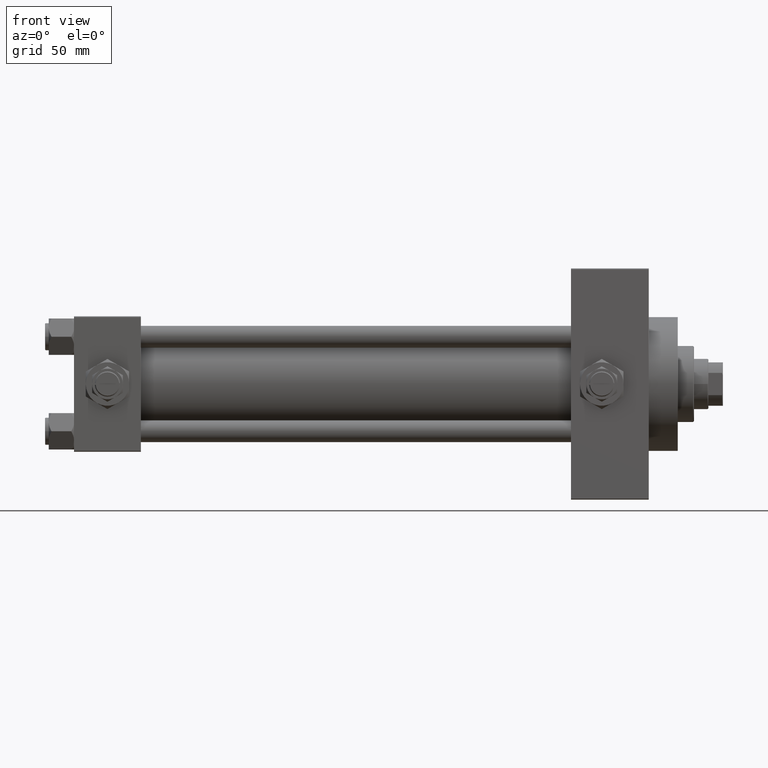
[diagram: clean part render]
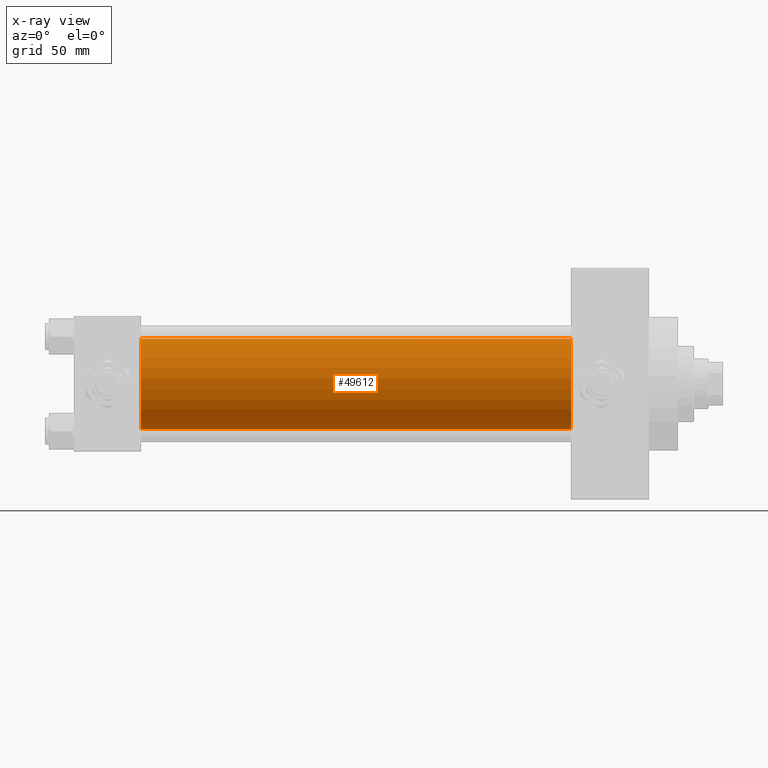
[diagram: x-ray — body ghosted, one internal face saturated and labeled with its STEP entity id]
A machine part, front view, then the same camera in x-ray: the body is ghosted and one INTERNAL B-rep face — a face not visible from any outside direction — is saturated and labeled: STEP entity #49612.
In plain terms, the highlighted cylindrical surface (partial cylindrical patch) has radius 25 mm, axis along (-1, -0, -0).
Its self-contained STEP definition (entity closure, byte-faithful):
#811 = CARTESIAN_POINT ( 'NONE',  ( 274.9999999999999432, -2.602085213965210642E-15, 0.000000000000000000 ) ) ;
#6997 = CARTESIAN_POINT ( 'NONE',  ( 274.9999999999999432, 4.595317839031724996E-16, -25.00000000000000000 ) ) ;
#8372 = EDGE_CURVE ( 'NONE', #12803, #37407, #12037, .T. ) ;
#10308 = VERTEX_POINT ( 'NONE', #44380 ) ;
#11776 = CARTESIAN_POINT ( 'NONE',  ( 274.9999999999999432, -2.602085213965210642E-15, 25.00000000000000000 ) ) ;
#12037 = LINE ( 'NONE', #23562, #37667 ) ;
#12608 = CIRCLE ( 'NONE', #24916, 25.00000000000000000 ) ;
#12803 = VERTEX_POINT ( 'NONE', #11776 ) ;
#14966 = CARTESIAN_POINT ( 'NONE',  ( 37.00000000000000000, -2.602085213965210642E-15, 25.00000000000000000 ) ) ;
#16865 = LINE ( 'NONE', #21458, #42857 ) ;
#17119 = DIRECTION ( 'NONE',  ( -1.000000000000000000, -0.000000000000000000, -0.000000000000000000 ) ) ;
#20009 = FACE_OUTER_BOUND ( 'NONE', #46710, .T. ) ;
#20031 = ORIENTED_EDGE ( 'NONE', *, *, #47681, .T. ) ;
#20768 = DIRECTION ( 'NONE',  ( -1.000000000000000000, -0.000000000000000000, -0.000000000000000000 ) ) ;
#21458 = CARTESIAN_POINT ( 'NONE',  ( 274.9999999999999432, 4.595317839031724996E-16, -25.00000000000000000 ) ) ;
#22329 = AXIS2_PLACEMENT_3D ( 'NONE', #811, #20768, #32057 ) ;
#23562 = CARTESIAN_POINT ( 'NONE',  ( 274.9999999999999432, -2.602085213965210642E-15, 25.00000000000000000 ) ) ;
#24164 = EDGE_CURVE ( 'NONE', #37407, #10308, #26788, .T. ) ;
#24916 = AXIS2_PLACEMENT_3D ( 'NONE', #29695, #45822, #37639 ) ;
#26788 = CIRCLE ( 'NONE', #28425, 25.00000000000000000 ) ;
#26911 = DIRECTION ( 'NONE',  ( -1.000000000000000000, -0.000000000000000000, -0.000000000000000000 ) ) ;
#28425 = AXIS2_PLACEMENT_3D ( 'NONE', #33100, #37447, #33607 ) ;
#29695 = CARTESIAN_POINT ( 'NONE',  ( 274.9999999999999432, -2.602085213965210642E-15, 0.000000000000000000 ) ) ;
#30665 = ORIENTED_EDGE ( 'NONE', *, *, #8372, .F. ) ;
#32057 = DIRECTION ( 'NONE',  ( 0.000000000000000000, 0.000000000000000000, 1.000000000000000000 ) ) ;
#33100 = CARTESIAN_POINT ( 'NONE',  ( 37.00000000000000000, -2.602085213965210642E-15, 0.000000000000000000 ) ) ;
#33607 = DIRECTION ( 'NONE',  ( 0.000000000000000000, 0.000000000000000000, -1.000000000000000000 ) ) ;
#36672 = CYLINDRICAL_SURFACE ( 'NONE', #22329, 25.00000000000000000 ) ;
#37097 = ORIENTED_EDGE ( 'NONE', *, *, #45834, .T. ) ;
#37407 = VERTEX_POINT ( 'NONE', #14966 ) ;
#37447 = DIRECTION ( 'NONE',  ( 1.000000000000000000, 0.000000000000000000, 0.000000000000000000 ) ) ;
#37639 = DIRECTION ( 'NONE',  ( 0.000000000000000000, 0.000000000000000000, -1.000000000000000000 ) ) ;
#37667 = VECTOR ( 'NONE', #26911, 1000.000000000000000 ) ;
#42857 = VECTOR ( 'NONE', #17119, 1000.000000000000000 ) ;
#44380 = CARTESIAN_POINT ( 'NONE',  ( 37.00000000000000000, 4.595317839031724996E-16, -25.00000000000000000 ) ) ;
#45822 = DIRECTION ( 'NONE',  ( 1.000000000000000000, 0.000000000000000000, 0.000000000000000000 ) ) ;
#45834 = EDGE_CURVE ( 'NONE', #12803, #48407, #12608, .T. ) ;
#46710 = EDGE_LOOP ( 'NONE', ( #37097, #20031, #50633, #30665 ) ) ;
#47681 = EDGE_CURVE ( 'NONE', #48407, #10308, #16865, .T. ) ;
#48407 = VERTEX_POINT ( 'NONE', #6997 ) ;
#49612 = ADVANCED_FACE ( 'NONE', ( #20009 ), #36672, .F. ) ;
#50633 = ORIENTED_EDGE ( 'NONE', *, *, #24164, .F. ) ;